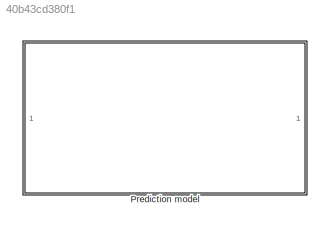
MODEL slx_40b43cd380f1
KIND library
CONFIG AbsTol = auto
CONFIG EnableMultiTasking = off
CONFIG FixedStep = auto
CONFIG MaxStep = auto
CONFIG MinStep = auto
CONFIG RelTol = 1e-3
CONFIG SampleTimeConstraint = Unconstrained
CONFIG SolverName = VariableStepAuto
CONFIG StartTime = 0.0
CONFIG StopTime = 10.0
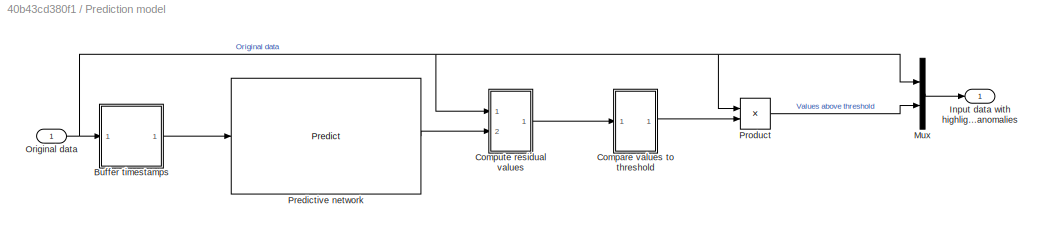
BLOCK [SubSystem] Prediction model
  Ports = [1, 1]
  RequestExecContextInheritance = off
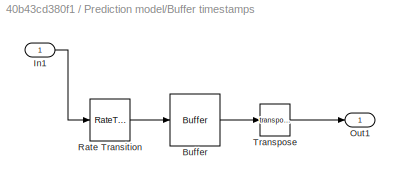
BLOCK [SubSystem] Prediction model/Buffer timestamps 
  Ports = [1, 1]
  RequestExecContextInheritance = off
BLOCK [Buffer] Prediction model/Buffer timestamps /Buffer
  N = BufferLength
  OutputFrames = off
  V = BufferLength-1
BLOCK [Inport] Prediction model/Buffer timestamps /In1
BLOCK [Outport] Prediction model/Buffer timestamps /Out1
BLOCK [RateTransition] Prediction model/Buffer timestamps /Rate Transition
  OutPortSampleTime = 1
BLOCK [Math] Prediction model/Buffer timestamps /Transpose
  Operator = transpose
  Ports = [1, 1]
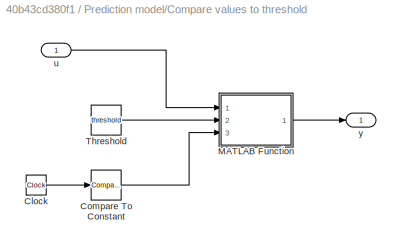
BLOCK [SubSystem] Prediction model/Compare values to threshold
  Ports = [1, 1]
  RequestExecContextInheritance = off
BLOCK [Clock] Prediction model/Compare values to threshold/Clock
  DisplayTime = on
BLOCK [Reference] Prediction model/Compare values to threshold/Compare To Constant  REF=simulink/Logic and Bit
Operations/Compare
To Constant
  Ports = [1, 1]
  SourceBlock = simulink/Logic and Bit\nOperations/Compare\nTo Constant
  SourceProductBaseCode = SL
  SourceType = Compare To Constant
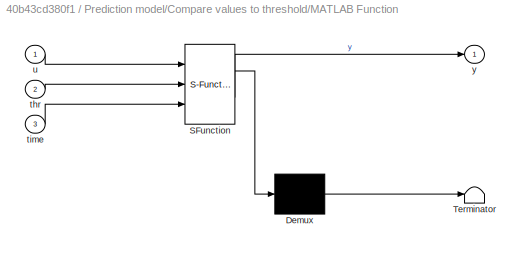
BLOCK [SubSystem] Prediction model/Compare values to threshold/MATLAB Function
  ErrorFcn = Stateflow.Translate.translate
  PermitHierarchicalResolution = ExplicitOnly
  Ports = [3, 1]
  RequestExecContextInheritance = off
  SFBlockType = MATLAB Function
  TreatAsAtomicUnit = on
BLOCK [Demux] Prediction model/Compare values to threshold/MATLAB Function/ Demux 
  Outputs = 1
  Ports = [1, 1]
BLOCK [S-Function] Prediction model/Compare values to threshold/MATLAB Function/ SFunction 
  EnableBusSupport = off
  FunctionName = sf_sfun
  PortCounts = [3 2]
  Ports = [3, 2]
  SFcnIsStateOwnerBlock = off
  SFunctionDeploymentMode = off
  Tag = Stateflow S-Function 1
BLOCK [Terminator] Prediction model/Compare values to threshold/MATLAB Function/ Terminator 
BLOCK [Inport] Prediction model/Compare values to threshold/MATLAB Function/thr
  Port = 2
BLOCK [Inport] Prediction model/Compare values to threshold/MATLAB Function/time
  Port = 3
BLOCK [Inport] Prediction model/Compare values to threshold/MATLAB Function/u
BLOCK [Outport] Prediction model/Compare values to threshold/MATLAB Function/y
BLOCK [Constant] Prediction model/Compare values to threshold/Threshold
  Value = threshold
BLOCK [Inport] Prediction model/Compare values to threshold/u
BLOCK [Outport] Prediction model/Compare values to threshold/y
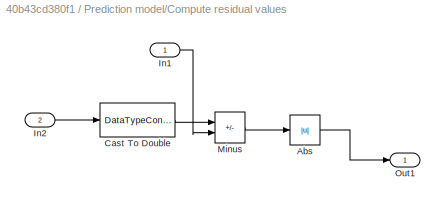
BLOCK [SubSystem] Prediction model/Compute residual values
  Ports = [2, 1]
  RequestExecContextInheritance = off
BLOCK [Abs] Prediction model/Compute residual values/Abs
  SaturateOnIntegerOverflow = off
BLOCK [DataTypeConversion] Prediction model/Compute residual values/Cast To Double
  OutDataTypeStr = double
  RndMeth = Floor
  SaturateOnIntegerOverflow = off
BLOCK [Inport] Prediction model/Compute residual values/In1
BLOCK [Inport] Prediction model/Compute residual values/In2
  Port = 2
BLOCK [Sum] Prediction model/Compute residual values/Minus
  IconShape = rectangular
  Inputs = +-
  Ports = [2, 1]
BLOCK [Outport] Prediction model/Compute residual values/Out1
BLOCK [Outport] Prediction model/Input data with highlighted anomalies
BLOCK [Mux] Prediction model/Mux
  DisplayOption = bar
  Inputs = 2
  Ports = [2, 1]
BLOCK [Inport] Prediction model/Original data
BLOCK [Reference] Prediction model/Predictive network  REF=deeplib/Predict
  Ports = [1, 1]
  SourceBlock = deeplib/Predict
  SourceProductBaseCode = NN
  SourceType = Predict
BLOCK [Product] Prediction model/Product
  Ports = [2, 1]
LINE Prediction model/Buffer timestamps /Buffer:1 -> Prediction model/Buffer timestamps /Transpose:1
LINE Prediction model/Buffer timestamps /In1:1 -> Prediction model/Buffer timestamps /Rate Transition:1
LINE Prediction model/Buffer timestamps /Rate Transition:1 -> Prediction model/Buffer timestamps /Buffer:1
LINE Prediction model/Buffer timestamps /Transpose:1 -> Prediction model/Buffer timestamps /Out1:1
LINE Prediction model/Buffer timestamps :1 -> Prediction model/Predictive network:1
LINE Prediction model/Compare values to threshold/Clock:1 -> Prediction model/Compare values to threshold/Compare To Constant:1
LINE Prediction model/Compare values to threshold/Compare To Constant:1 -> Prediction model/Compare values to threshold/MATLAB Function:3
LINE Prediction model/Compare values to threshold/MATLAB Function:1 -> Prediction model/Compare values to threshold/y:1
LINE Prediction model/Compare values to threshold/Threshold:1 -> Prediction model/Compare values to threshold/MATLAB Function:2
LINE Prediction model/Compare values to threshold/u:1 -> Prediction model/Compare values to threshold/MATLAB Function:1
LINE Prediction model/Compare values to threshold:1 -> Prediction model/Product:2
LINE Prediction model/Compute residual values/Abs:1 -> Prediction model/Compute residual values/Out1:1
LINE Prediction model/Compute residual values/Cast To Double:1 -> Prediction model/Compute residual values/Minus:1
LINE Prediction model/Compute residual values/In1:1 -> Prediction model/Compute residual values/Minus:2
LINE Prediction model/Compute residual values/In2:1 -> Prediction model/Compute residual values/Cast To Double:1
LINE Prediction model/Compute residual values/Minus:1 -> Prediction model/Compute residual values/Abs:1
LINE Prediction model/Compute residual values:1 -> Prediction model/Compare values to threshold:1
LINE Prediction model/Mux:1 -> Prediction model/Input data with highlighted anomalies:1
NET Prediction model/Original data:1 -> Prediction model/Buffer timestamps :1, Prediction model/Compute residual values:1, Prediction model/Mux:1, Prediction model/Product:1
LINE Prediction model/Predictive network:1 -> Prediction model/Compute residual values:2
LINE Prediction model/Product:1 -> Prediction model/Mux:2
note: NET lines group one-source signal fan-out (src -> all destinations, sorted); 1:1 wires keep LINE
CHART Prediction model/Compare values to threshold/MATLAB Function states=1 transitions=1
  STATE_LABEL 'eML_blk_kernel()'
  STATE_LABEL 'SCRIPT:\nfunction y = fcn(u,thr, time)\ny = NaN;\nif time == 1\n    if u > thr\n    y = 1;\n    end\nend\n\n\n'
CHART  states=0 transitions=0
